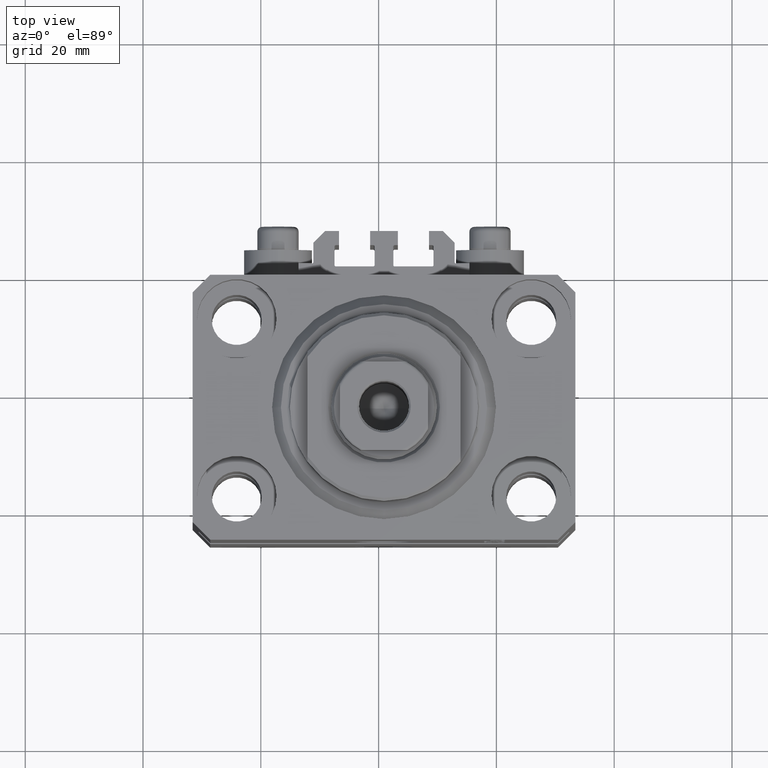
[diagram: clean part render]
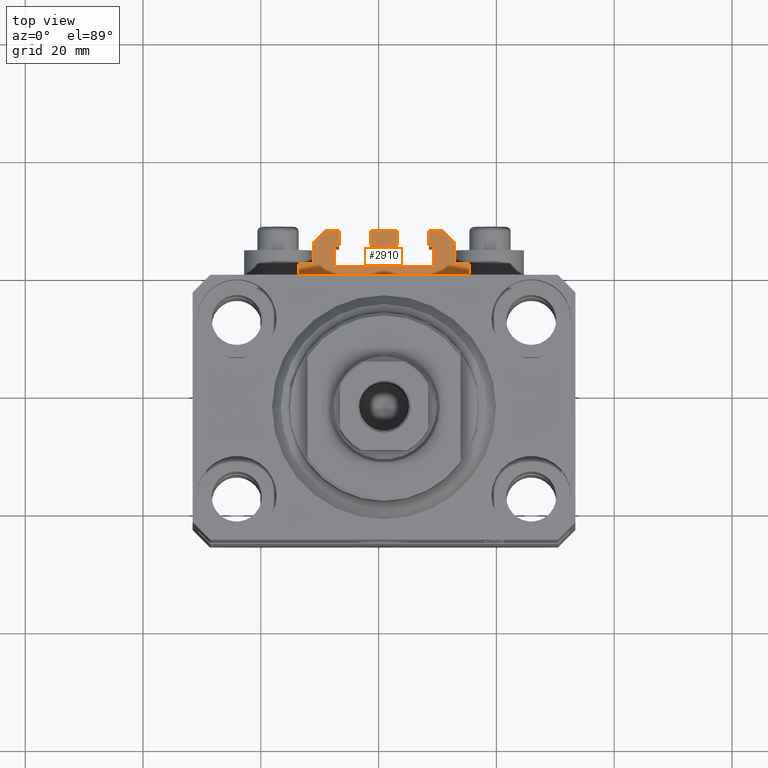
[diagram: same view with one face highlighted and labeled with its STEP entity id]
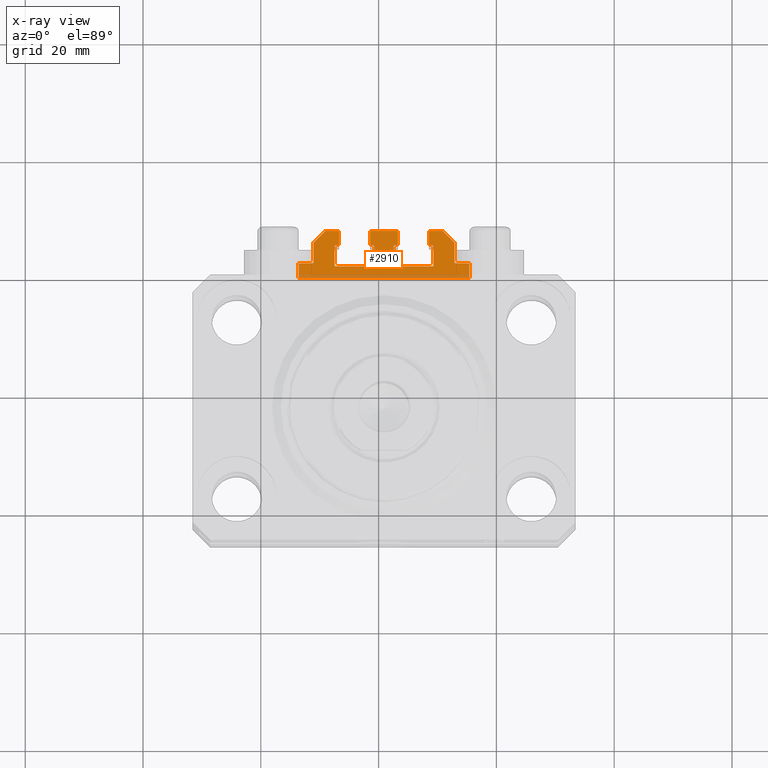
[diagram: x-ray of the same camera — body ghosted, the highlighted face saturated]
A machine part, top view. The second image highlights one B-rep face of the part: STEP entity #2910.
The next image is the same camera in x-ray: the body ghosted, the highlighted face saturated — about 14% of this face is hidden behind the body in this view.
In plain terms, the highlighted planar face has unit normal (0, 0, 1).
Its self-contained STEP definition (entity closure, byte-faithful):
#70 = CIRCLE ( 'NONE', #3872, 0.1999999999999994282 ) ;
#74 = DIRECTION ( 'NONE',  ( 1.000000000000000000, 0.000000000000000000, 0.000000000000000000 ) ) ;
#133 = VECTOR ( 'NONE', #39458, 999.9999999999998863 ) ;
#288 = CARTESIAN_POINT ( 'NONE',  ( -8.199999999999997513, 28.09999999999948628, -33.00000000000000000 ) ) ;
#353 = VERTEX_POINT ( 'NONE', #29320 ) ;
#432 = DIRECTION ( 'NONE',  ( 1.000000000000000000, 0.000000000000000000, 0.000000000000000000 ) ) ;
#461 = DIRECTION ( 'NONE',  ( 0.000000000000000000, 0.000000000000000000, 1.000000000000000000 ) ) ;
#482 = EDGE_CURVE ( 'NONE', #37467, #11060, #42798, .T. ) ;
#587 = VECTOR ( 'NONE', #5708, 1000.000000000000000 ) ;
#820 = EDGE_CURVE ( 'NONE', #39257, #23301, #4828, .T. ) ;
#1068 = VERTEX_POINT ( 'NONE', #9541 ) ;
#1146 = EDGE_CURVE ( 'NONE', #19256, #21785, #41997, .T. ) ;
#1415 = ORIENTED_EDGE ( 'NONE', *, *, #41914, .F. ) ;
#1475 = CARTESIAN_POINT ( 'NONE',  ( 1.800000000000000933, 24.69999999999949480, -33.00000000000000000 ) ) ;
#1570 = DIRECTION ( 'NONE',  ( 1.000000000000000000, 6.308085367188338373E-15, 0.000000000000000000 ) ) ;
#2060 = LINE ( 'NONE', #16634, #40937 ) ;
#2106 = ORIENTED_EDGE ( 'NONE', *, *, #22771, .T. ) ;
#2173 = VERTEX_POINT ( 'NONE', #28388 ) ;
#2184 = EDGE_CURVE ( 'NONE', #45659, #7044, #32213, .T. ) ;
#2283 = CARTESIAN_POINT ( 'NONE',  ( 7.649999999999995914, 28.09999999999950404, -33.00000000000000000 ) ) ;
#2351 = EDGE_CURVE ( 'NONE', #15916, #7044, #33103, .T. ) ;
#2629 = ORIENTED_EDGE ( 'NONE', *, *, #33841, .T. ) ;
#2873 = ORIENTED_EDGE ( 'NONE', *, *, #35543, .T. ) ;
#2910 = ADVANCED_FACE ( 'NONE', ( #32052 ), #31573, .T. ) ;
#3166 = DIRECTION ( 'NONE',  ( 1.000000000000000000, -6.308085367188365195E-15, 0.000000000000000000 ) ) ;
#3250 = VECTOR ( 'NONE', #32615, 1000.000000000000000 ) ;
#3369 = CARTESIAN_POINT ( 'NONE',  ( 12.20000000000000284, 25.19999999999950546, -33.00000000000000000 ) ) ;
#3464 = LINE ( 'NONE', #32605, #45096 ) ;
#3489 = DIRECTION ( 'NONE',  ( 0.000000000000000000, 0.000000000000000000, 1.000000000000000000 ) ) ;
#3872 = AXIS2_PLACEMENT_3D ( 'NONE', #45429, #23717, #20134 ) ;
#3892 = CARTESIAN_POINT ( 'NONE',  ( 9.999999999999994671, 30.49999999999949551, -33.00000000000000000 ) ) ;
#3986 = CARTESIAN_POINT ( 'NONE',  ( -8.199999999999999289, 24.49999999999949551, -33.00000000000000000 ) ) ;
#4112 = CARTESIAN_POINT ( 'NONE',  ( -1.600000000000000533, 27.89999999999950120, -33.00000000000000000 ) ) ;
#4229 = CARTESIAN_POINT ( 'NONE',  ( -8.399999999999998579, 24.69999999999949480, -33.00000000000000000 ) ) ;
#4252 = CARTESIAN_POINT ( 'NONE',  ( -8.399999999999996803, 27.89999999999948699, -33.00000000000000000 ) ) ;
#4334 = ORIENTED_EDGE ( 'NONE', *, *, #31983, .F. ) ;
#4387 = EDGE_CURVE ( 'NONE', #37031, #16776, #43508, .T. ) ;
#4619 = VERTEX_POINT ( 'NONE', #20828 ) ;
#4671 = CARTESIAN_POINT ( 'NONE',  ( 14.49999999999999645, 22.49999999999949907, -33.00000000000000000 ) ) ;
#4828 = LINE ( 'NONE', #45166, #19334 ) ;
#5072 = ORIENTED_EDGE ( 'NONE', *, *, #2351, .F. ) ;
#5195 = LINE ( 'NONE', #41940, #24003 ) ;
#5708 = DIRECTION ( 'NONE',  ( 0.000000000000000000, -1.000000000000000000, 0.000000000000000000 ) ) ;
#5793 = DIRECTION ( 'NONE',  ( -1.000000000000000000, 1.508455196501571429E-15, 0.000000000000000000 ) ) ;
#5803 = VECTOR ( 'NONE', #34979, 1000.000000000000000 ) ;
#5975 = VERTEX_POINT ( 'NONE', #17657 ) ;
#6293 = ORIENTED_EDGE ( 'NONE', *, *, #13293, .T. ) ;
#6461 = EDGE_CURVE ( 'NONE', #21914, #1068, #30984, .T. ) ;
#6846 = DIRECTION ( 'NONE',  ( 1.000000000000000000, 0.000000000000000000, 0.000000000000000000 ) ) ;
#6855 = CARTESIAN_POINT ( 'NONE',  ( 12.20000000000000284, 24.99999999999950617, -33.00000000000000000 ) ) ;
#7044 = VERTEX_POINT ( 'NONE', #6855 ) ;
#7217 = LINE ( 'NONE', #4112, #10998 ) ;
#7282 = CARTESIAN_POINT ( 'NONE',  ( 8.400000000000000355, 27.89999999999950475, -33.00000000000000000 ) ) ;
#7343 = CARTESIAN_POINT ( 'NONE',  ( 12.00000000000000178, 28.49999999999950973, -33.00000000000000000 ) ) ;
#7555 = EDGE_CURVE ( 'NONE', #11060, #42179, #16574, .T. ) ;
#7718 = CARTESIAN_POINT ( 'NONE',  ( -8.199999999999999289, 24.69999999999949480, -33.00000000000000000 ) ) ;
#7757 = VERTEX_POINT ( 'NONE', #44910 ) ;
#7859 = ORIENTED_EDGE ( 'NONE', *, *, #30741, .T. ) ;
#7951 = DIRECTION ( 'NONE',  ( 0.000000000000000000, 0.000000000000000000, 1.000000000000000000 ) ) ;
#8263 = ORIENTED_EDGE ( 'NONE', *, *, #35961, .T. ) ;
#8524 = DIRECTION ( 'NONE',  ( 0.000000000000000000, -1.000000000000000000, 0.000000000000000000 ) ) ;
#8614 = DIRECTION ( 'NONE',  ( 1.000000000000000000, 0.000000000000000000, 0.000000000000000000 ) ) ;
#8640 = DIRECTION ( 'NONE',  ( 0.000000000000000000, 1.000000000000000000, 0.000000000000000000 ) ) ;
#8770 = VECTOR ( 'NONE', #19165, 1000.000000000000000 ) ;
#8876 = VECTOR ( 'NONE', #9391, 1000.000000000000000 ) ;
#8999 = EDGE_CURVE ( 'NONE', #26665, #36611, #7217, .T. ) ;
#9252 = DIRECTION ( 'NONE',  ( 0.000000000000000000, 0.000000000000000000, 1.000000000000000000 ) ) ;
#9391 = DIRECTION ( 'NONE',  ( 1.000000000000000000, 0.000000000000000000, 0.000000000000000000 ) ) ;
#9524 = CARTESIAN_POINT ( 'NONE',  ( 2.349999999999999645, 28.09999999999950049, -33.00000000000000000 ) ) ;
#9541 = CARTESIAN_POINT ( 'NONE',  ( -12.00000000000000000, 25.19999999999949125, -33.00000000000000000 ) ) ;
#9781 = AXIS2_PLACEMENT_3D ( 'NONE', #1475, #41311, #8614 ) ;
#10211 = DIRECTION ( 'NONE',  ( 0.000000000000000000, 0.000000000000000000, 1.000000000000000000 ) ) ;
#10590 = CARTESIAN_POINT ( 'NONE',  ( -8.400000000000000355, 24.69999999999949480, -33.00000000000000000 ) ) ;
#10870 = DIRECTION ( 'NONE',  ( 0.000000000000000000, 1.000000000000000000, 0.000000000000000000 ) ) ;
#10998 = VECTOR ( 'NONE', #40620, 1000.000000000000000 ) ;
#11001 = VERTEX_POINT ( 'NONE', #3986 ) ;
#11060 = VERTEX_POINT ( 'NONE', #19264 ) ;
#11087 = CARTESIAN_POINT ( 'NONE',  ( -2.350000000000003197, 30.49999999999949907, -33.00000000000000000 ) ) ;
#11341 = VECTOR ( 'NONE', #14266, 1000.000000000000000 ) ;
#11510 = DIRECTION ( 'NONE',  ( 0.000000000000000000, 0.000000000000000000, 1.000000000000000000 ) ) ;
#11677 = ORIENTED_EDGE ( 'NONE', *, *, #41366, .T. ) ;
#12057 = CARTESIAN_POINT ( 'NONE',  ( 1.599999999999999645, 24.69999999999949480, -33.00000000000000000 ) ) ;
#12522 = AXIS2_PLACEMENT_3D ( 'NONE', #27632, #9252, #41706 ) ;
#13293 = EDGE_CURVE ( 'NONE', #24456, #2173, #5195, .T. ) ;
#13601 = ORIENTED_EDGE ( 'NONE', *, *, #34123, .T. ) ;
#13629 = VECTOR ( 'NONE', #43234, 1000.000000000000000 ) ;
#13918 = LINE ( 'NONE', #24899, #133 ) ;
#14094 = CARTESIAN_POINT ( 'NONE',  ( -14.50000000000000000, 24.99999999999949196, -33.00000000000000000 ) ) ;
#14266 = DIRECTION ( 'NONE',  ( -1.000000000000000000, 0.000000000000000000, 0.000000000000000000 ) ) ;
#14872 = ORIENTED_EDGE ( 'NONE', *, *, #45757, .T. ) ;
#15666 = DIRECTION ( 'NONE',  ( 6.938893903907212600E-16, 1.000000000000000000, 0.000000000000000000 ) ) ;
#15916 = VERTEX_POINT ( 'NONE', #21608 ) ;
#16574 = LINE ( 'NONE', #42078, #8876 ) ;
#16634 = CARTESIAN_POINT ( 'NONE',  ( 8.400000000000000355, 27.89999999999950475, -33.00000000000000000 ) ) ;
#16651 = EDGE_CURVE ( 'NONE', #42179, #45659, #45721, .T. ) ;
#16776 = VERTEX_POINT ( 'NONE', #4252 ) ;
#16844 = CARTESIAN_POINT ( 'NONE',  ( 2.349999999999999645, 30.49999999999949907, -33.00000000000000000 ) ) ;
#17090 = LINE ( 'NONE', #31642, #32553 ) ;
#17189 = CIRCLE ( 'NONE', #43841, 0.2000000000000005107 ) ;
#17219 = CARTESIAN_POINT ( 'NONE',  ( 8.200000000000001066, 24.69999999999949125, -33.00000000000000000 ) ) ;
#17307 = CARTESIAN_POINT ( 'NONE',  ( 12.00000000000000178, 25.19999999999951257, -33.00000000000000000 ) ) ;
#17431 = EDGE_CURVE ( 'NONE', #37031, #11001, #27946, .T. ) ;
#17657 = CARTESIAN_POINT ( 'NONE',  ( -7.650000000000000355, 28.09999999999948628, -33.00000000000000000 ) ) ;
#17727 = LINE ( 'NONE', #288, #13629 ) ;
#18510 = CARTESIAN_POINT ( 'NONE',  ( -7.650000000000000355, 28.09999999999948628, -33.00000000000000000 ) ) ;
#18745 = VECTOR ( 'NONE', #5793, 1000.000000000000000 ) ;
#18750 = LINE ( 'NONE', #18510, #27876 ) ;
#19165 = DIRECTION ( 'NONE',  ( 1.084202172485506406E-15, 1.000000000000000000, 0.000000000000000000 ) ) ;
#19256 = VERTEX_POINT ( 'NONE', #9524 ) ;
#19264 = CARTESIAN_POINT ( 'NONE',  ( -14.50000000000000000, 22.49999999999949907, -33.00000000000000000 ) ) ;
#19292 = ORIENTED_EDGE ( 'NONE', *, *, #28201, .F. ) ;
#19334 = VECTOR ( 'NONE', #8640, 1000.000000000000000 ) ;
#19808 = ORIENTED_EDGE ( 'NONE', *, *, #23401, .T. ) ;
#19892 = LINE ( 'NONE', #24175, #18745 ) ;
#19895 = VERTEX_POINT ( 'NONE', #25087 ) ;
#19986 = EDGE_LOOP ( 'NONE', ( #23413, #44926, #25764, #37624, #5072, #20957, #13601, #11677, #6293, #7859, #41347, #30151, #41302, #30855, #37823, #25946, #41139, #2873, #20357, #19292, #40312, #2106, #1415, #45130, #4334, #19808, #29629, #38454, #45181, #14872, #28187, #8263, #2629, #31689, #39038, #35576 ) ) ;
#19995 = DIRECTION ( 'NONE',  ( 3.614007241618365534E-16, -1.000000000000000000, 0.000000000000000000 ) ) ;
#20134 = DIRECTION ( 'NONE',  ( 1.000000000000000000, 0.000000000000000000, 0.000000000000000000 ) ) ;
#20357 = ORIENTED_EDGE ( 'NONE', *, *, #1146, .T. ) ;
#20471 = CIRCLE ( 'NONE', #41003, 0.1999999999999987899 ) ;
#20828 = CARTESIAN_POINT ( 'NONE',  ( 8.200000000000001066, 24.49999999999949196, -33.00000000000000000 ) ) ;
#20907 = DIRECTION ( 'NONE',  ( -1.000000000000000000, -1.476360405086644852E-15, 0.000000000000000000 ) ) ;
#20923 = VECTOR ( 'NONE', #46530, 1000.000000000000000 ) ;
#20957 = ORIENTED_EDGE ( 'NONE', *, *, #39298, .T. ) ;
#21206 = EDGE_CURVE ( 'NONE', #33595, #36137, #45583, .T. ) ;
#21231 = CARTESIAN_POINT ( 'NONE',  ( -7.650000000000000355, 30.49999999999948486, -33.00000000000000000 ) ) ;
#21372 = DIRECTION ( 'NONE',  ( 0.000000000000000000, 0.000000000000000000, 1.000000000000000000 ) ) ;
#21383 = VERTEX_POINT ( 'NONE', #33377 ) ;
#21449 = LINE ( 'NONE', #39344, #11341 ) ;
#21513 = CARTESIAN_POINT ( 'NONE',  ( -1.800000000000000933, 24.49999999999949551, -33.00000000000000000 ) ) ;
#21608 = CARTESIAN_POINT ( 'NONE',  ( 12.00000000000000355, 25.19999999999951257, -33.00000000000000000 ) ) ;
#21664 = DIRECTION ( 'NONE',  ( 1.000000000000000000, 0.000000000000000000, 0.000000000000000000 ) ) ;
#21785 = VERTEX_POINT ( 'NONE', #16844 ) ;
#21914 = VERTEX_POINT ( 'NONE', #28731 ) ;
#22056 = EDGE_CURVE ( 'NONE', #4619, #31153, #20471, .T. ) ;
#22085 = LINE ( 'NONE', #43779, #27574 ) ;
#22150 = DIRECTION ( 'NONE',  ( -0.7071067811865507924, 0.7071067811865441310, 0.000000000000000000 ) ) ;
#22184 = CARTESIAN_POINT ( 'NONE',  ( -1.800000000000000933, 27.89999999999950120, -33.00000000000000000 ) ) ;
#22208 = EDGE_CURVE ( 'NONE', #39257, #7757, #30374, .T. ) ;
#22247 = VECTOR ( 'NONE', #22150, 1000.000000000000000 ) ;
#22771 = EDGE_CURVE ( 'NONE', #36137, #353, #40147, .T. ) ;
#22914 = CARTESIAN_POINT ( 'NONE',  ( 8.200000000000001066, 28.09999999999950759, -33.00000000000000000 ) ) ;
#23301 = VERTEX_POINT ( 'NONE', #38640 ) ;
#23397 = DIRECTION ( 'NONE',  ( 0.000000000000000000, 1.000000000000000000, 0.000000000000000000 ) ) ;
#23401 = EDGE_CURVE ( 'NONE', #37404, #11001, #21449, .T. ) ;
#23413 = ORIENTED_EDGE ( 'NONE', *, *, #482, .T. ) ;
#23717 = DIRECTION ( 'NONE',  ( 0.000000000000000000, 0.000000000000000000, 1.000000000000000000 ) ) ;
#24003 = VECTOR ( 'NONE', #19995, 1000.000000000000000 ) ;
#24175 = CARTESIAN_POINT ( 'NONE',  ( -12.20000000000000107, 24.99999999999948841, -33.00000000000000000 ) ) ;
#24456 = VERTEX_POINT ( 'NONE', #37899 ) ;
#24756 = CARTESIAN_POINT ( 'NONE',  ( -8.199999999999997513, 27.89999999999948699, -33.00000000000000000 ) ) ;
#24773 = CARTESIAN_POINT ( 'NONE',  ( 1.800000000000000933, 27.89999999999950120, -33.00000000000000000 ) ) ;
#24899 = CARTESIAN_POINT ( 'NONE',  ( -10.00000000000000000, 30.49999999999948841, -33.00000000000000000 ) ) ;
#25087 = CARTESIAN_POINT ( 'NONE',  ( -8.199999999999997513, 28.09999999999948628, -33.00000000000000000 ) ) ;
#25328 = VECTOR ( 'NONE', #40404, 1000.000000000000000 ) ;
#25731 = LINE ( 'NONE', #43611, #32723 ) ;
#25764 = ORIENTED_EDGE ( 'NONE', *, *, #16651, .T. ) ;
#25946 = ORIENTED_EDGE ( 'NONE', *, *, #820, .T. ) ;
#26665 = VERTEX_POINT ( 'NONE', #44322 ) ;
#27574 = VECTOR ( 'NONE', #36639, 1000.000000000000000 ) ;
#27632 = CARTESIAN_POINT ( 'NONE',  ( 12.20000000000000284, 25.19999999999950546, -33.00000000000000000 ) ) ;
#27876 = VECTOR ( 'NONE', #10870, 1000.000000000000000 ) ;
#27946 = CIRCLE ( 'NONE', #32515, 0.1999999999999987899 ) ;
#28042 = CIRCLE ( 'NONE', #42503, 0.1999999999999981515 ) ;
#28187 = ORIENTED_EDGE ( 'NONE', *, *, #38020, .T. ) ;
#28201 = EDGE_CURVE ( 'NONE', #33595, #21785, #25731, .T. ) ;
#28216 = VERTEX_POINT ( 'NONE', #7343 ) ;
#28388 = CARTESIAN_POINT ( 'NONE',  ( 7.649999999999995914, 28.09999999999950404, -33.00000000000000000 ) ) ;
#28731 = CARTESIAN_POINT ( 'NONE',  ( -12.20000000000000107, 24.99999999999948841, -33.00000000000000000 ) ) ;
#29036 = CARTESIAN_POINT ( 'NONE',  ( 14.49999999999999645, 22.49999999999949907, -33.00000000000000000 ) ) ;
#29252 = VECTOR ( 'NONE', #23397, 1000.000000000000000 ) ;
#29320 = CARTESIAN_POINT ( 'NONE',  ( -1.800000000000000933, 28.09999999999949694, -33.00000000000000000 ) ) ;
#29629 = ORIENTED_EDGE ( 'NONE', *, *, #17431, .F. ) ;
#29663 = CARTESIAN_POINT ( 'NONE',  ( 8.200000000000001066, 27.89999999999950475, -33.00000000000000000 ) ) ;
#30151 = ORIENTED_EDGE ( 'NONE', *, *, #42353, .T. ) ;
#30374 = CIRCLE ( 'NONE', #9781, 0.2000000000000016209 ) ;
#30741 = EDGE_CURVE ( 'NONE', #2173, #35395, #34279, .T. ) ;
#30855 = ORIENTED_EDGE ( 'NONE', *, *, #34508, .T. ) ;
#30984 = CIRCLE ( 'NONE', #35532, 0.2000000000000005107 ) ;
#31153 = VERTEX_POINT ( 'NONE', #46056 ) ;
#31319 = DIRECTION ( 'NONE',  ( 1.000000000000000000, 0.000000000000000000, 0.000000000000000000 ) ) ;
#31487 = EDGE_CURVE ( 'NONE', #19895, #16776, #35851, .T. ) ;
#31544 = VECTOR ( 'NONE', #8524, 1000.000000000000000 ) ;
#31573 = PLANE ( 'NONE',  #33142 ) ;
#31642 = CARTESIAN_POINT ( 'NONE',  ( 9.999999999999994671, 30.49999999999949551, -33.00000000000000000 ) ) ;
#31689 = ORIENTED_EDGE ( 'NONE', *, *, #33654, .T. ) ;
#31983 = EDGE_CURVE ( 'NONE', #37404, #36611, #70, .T. ) ;
#32052 = FACE_OUTER_BOUND ( 'NONE', #19986, .T. ) ;
#32213 = LINE ( 'NONE', #39132, #20923 ) ;
#32377 = CARTESIAN_POINT ( 'NONE',  ( 1.800000000000000933, 28.09999999999949694, -33.00000000000000000 ) ) ;
#32515 = AXIS2_PLACEMENT_3D ( 'NONE', #7718, #7951, #36844 ) ;
#32553 = VECTOR ( 'NONE', #20907, 1000.000000000000000 ) ;
#32605 = CARTESIAN_POINT ( 'NONE',  ( 8.200000000000001066, 24.49999999999949196, -33.00000000000000000 ) ) ;
#32615 = DIRECTION ( 'NONE',  ( 1.000000000000000000, 6.308085367188405427E-15, 0.000000000000000000 ) ) ;
#32723 = VECTOR ( 'NONE', #432, 1000.000000000000000 ) ;
#33103 = CIRCLE ( 'NONE', #12522, 0.1999999999999987899 ) ;
#33142 = AXIS2_PLACEMENT_3D ( 'NONE', #3369, #38735, #42987 ) ;
#33241 = VECTOR ( 'NONE', #15666, 1000.000000000000000 ) ;
#33377 = CARTESIAN_POINT ( 'NONE',  ( -12.00000000000000000, 28.49999999999948841, -33.00000000000000000 ) ) ;
#33569 = AXIS2_PLACEMENT_3D ( 'NONE', #24756, #3489, #6846 ) ;
#33595 = VERTEX_POINT ( 'NONE', #11087 ) ;
#33654 = EDGE_CURVE ( 'NONE', #21383, #1068, #22085, .T. ) ;
#33841 = EDGE_CURVE ( 'NONE', #45216, #21383, #13918, .T. ) ;
#34088 = CIRCLE ( 'NONE', #37910, 0.1999999999999979294 ) ;
#34123 = EDGE_CURVE ( 'NONE', #28216, #35814, #36000, .T. ) ;
#34279 = LINE ( 'NONE', #2283, #45764 ) ;
#34508 = EDGE_CURVE ( 'NONE', #4619, #7757, #3464, .T. ) ;
#34929 = CARTESIAN_POINT ( 'NONE',  ( 14.49999999999999822, 24.99999999999950617, -33.00000000000000000 ) ) ;
#34979 = DIRECTION ( 'NONE',  ( 0.000000000000000000, 1.000000000000000000, 0.000000000000000000 ) ) ;
#35395 = VERTEX_POINT ( 'NONE', #22914 ) ;
#35532 = AXIS2_PLACEMENT_3D ( 'NONE', #46655, #21372, #40884 ) ;
#35543 = EDGE_CURVE ( 'NONE', #37766, #19256, #46698, .T. ) ;
#35576 = ORIENTED_EDGE ( 'NONE', *, *, #39858, .T. ) ;
#35814 = VERTEX_POINT ( 'NONE', #3892 ) ;
#35851 = CIRCLE ( 'NONE', #33569, 0.1999999999999987899 ) ;
#35961 = EDGE_CURVE ( 'NONE', #37687, #45216, #37318, .T. ) ;
#36000 = LINE ( 'NONE', #43607, #22247 ) ;
#36137 = VERTEX_POINT ( 'NONE', #36543 ) ;
#36267 = DIRECTION ( 'NONE',  ( 1.000000000000000000, 0.000000000000000000, 0.000000000000000000 ) ) ;
#36543 = CARTESIAN_POINT ( 'NONE',  ( -2.350000000000003197, 28.09999999999950049, -33.00000000000000000 ) ) ;
#36607 = EDGE_CURVE ( 'NONE', #37332, #35395, #17189, .T. ) ;
#36611 = VERTEX_POINT ( 'NONE', #40152 ) ;
#36639 = DIRECTION ( 'NONE',  ( 0.000000000000000000, -1.000000000000000000, 0.000000000000000000 ) ) ;
#36844 = DIRECTION ( 'NONE',  ( 1.000000000000000000, 0.000000000000000000, 0.000000000000000000 ) ) ;
#37031 = VERTEX_POINT ( 'NONE', #4229 ) ;
#37318 = LINE ( 'NONE', #40871, #25328 ) ;
#37332 = VERTEX_POINT ( 'NONE', #7282 ) ;
#37404 = VERTEX_POINT ( 'NONE', #21513 ) ;
#37467 = VERTEX_POINT ( 'NONE', #14094 ) ;
#37624 = ORIENTED_EDGE ( 'NONE', *, *, #2184, .T. ) ;
#37687 = VERTEX_POINT ( 'NONE', #21231 ) ;
#37766 = VERTEX_POINT ( 'NONE', #40975 ) ;
#37823 = ORIENTED_EDGE ( 'NONE', *, *, #22208, .F. ) ;
#37899 = CARTESIAN_POINT ( 'NONE',  ( 7.649999999999995026, 30.49999999999949196, -33.00000000000000000 ) ) ;
#37910 = AXIS2_PLACEMENT_3D ( 'NONE', #22184, #461, #36267 ) ;
#38020 = EDGE_CURVE ( 'NONE', #5975, #37687, #18750, .T. ) ;
#38044 = VECTOR ( 'NONE', #3166, 1000.000000000000000 ) ;
#38423 = CARTESIAN_POINT ( 'NONE',  ( -2.350000000000003197, 30.49999999999949907, -33.00000000000000000 ) ) ;
#38454 = ORIENTED_EDGE ( 'NONE', *, *, #4387, .T. ) ;
#38558 = LINE ( 'NONE', #17307, #5803 ) ;
#38640 = CARTESIAN_POINT ( 'NONE',  ( 1.600000000000000533, 27.89999999999950120, -33.00000000000000000 ) ) ;
#38735 = DIRECTION ( 'NONE',  ( 0.000000000000000000, 0.000000000000000000, 1.000000000000000000 ) ) ;
#39001 = CARTESIAN_POINT ( 'NONE',  ( -14.50000000000000000, 24.99999999999949196, -33.00000000000000000 ) ) ;
#39038 = ORIENTED_EDGE ( 'NONE', *, *, #6461, .F. ) ;
#39132 = CARTESIAN_POINT ( 'NONE',  ( 14.49999999999999822, 24.99999999999950617, -33.00000000000000000 ) ) ;
#39257 = VERTEX_POINT ( 'NONE', #12057 ) ;
#39298 = EDGE_CURVE ( 'NONE', #15916, #28216, #38558, .T. ) ;
#39344 = CARTESIAN_POINT ( 'NONE',  ( -1.800000000000000933, 24.49999999999949551, -33.00000000000000000 ) ) ;
#39458 = DIRECTION ( 'NONE',  ( -0.7071067811865472397, -0.7071067811865479058, 0.000000000000000000 ) ) ;
#39858 = EDGE_CURVE ( 'NONE', #21914, #37467, #19892, .T. ) ;
#40147 = LINE ( 'NONE', #43489, #38044 ) ;
#40152 = CARTESIAN_POINT ( 'NONE',  ( -1.600000000000000755, 24.69999999999949480, -33.00000000000000000 ) ) ;
#40312 = ORIENTED_EDGE ( 'NONE', *, *, #21206, .T. ) ;
#40404 = DIRECTION ( 'NONE',  ( -1.000000000000000000, 1.476360405086644852E-15, 0.000000000000000000 ) ) ;
#40620 = DIRECTION ( 'NONE',  ( -6.776263578034385456E-17, -1.000000000000000000, 0.000000000000000000 ) ) ;
#40871 = CARTESIAN_POINT ( 'NONE',  ( -7.650000000000000355, 30.49999999999948486, -33.00000000000000000 ) ) ;
#40884 = DIRECTION ( 'NONE',  ( 1.000000000000000000, 0.000000000000000000, 0.000000000000000000 ) ) ;
#40937 = VECTOR ( 'NONE', #46663, 1000.000000000000000 ) ;
#40975 = CARTESIAN_POINT ( 'NONE',  ( 1.800000000000000933, 28.09999999999950049, -33.00000000000000000 ) ) ;
#41003 = AXIS2_PLACEMENT_3D ( 'NONE', #17219, #46326, #31319 ) ;
#41139 = ORIENTED_EDGE ( 'NONE', *, *, #46308, .F. ) ;
#41302 = ORIENTED_EDGE ( 'NONE', *, *, #22056, .F. ) ;
#41311 = DIRECTION ( 'NONE',  ( 0.000000000000000000, 0.000000000000000000, 1.000000000000000000 ) ) ;
#41347 = ORIENTED_EDGE ( 'NONE', *, *, #36607, .F. ) ;
#41366 = EDGE_CURVE ( 'NONE', #35814, #24456, #17090, .T. ) ;
#41508 = CARTESIAN_POINT ( 'NONE',  ( 2.349999999999999645, 28.09999999999950049, -33.00000000000000000 ) ) ;
#41706 = DIRECTION ( 'NONE',  ( 1.000000000000000000, 0.000000000000000000, 0.000000000000000000 ) ) ;
#41914 = EDGE_CURVE ( 'NONE', #26665, #353, #34088, .T. ) ;
#41940 = CARTESIAN_POINT ( 'NONE',  ( 7.649999999999995026, 30.49999999999949196, -33.00000000000000000 ) ) ;
#41997 = LINE ( 'NONE', #41508, #29252 ) ;
#42078 = CARTESIAN_POINT ( 'NONE',  ( -14.50000000000000000, 22.49999999999949907, -33.00000000000000000 ) ) ;
#42179 = VERTEX_POINT ( 'NONE', #29036 ) ;
#42353 = EDGE_CURVE ( 'NONE', #37332, #31153, #2060, .T. ) ;
#42503 = AXIS2_PLACEMENT_3D ( 'NONE', #24773, #10211, #21664 ) ;
#42798 = LINE ( 'NONE', #39001, #31544 ) ;
#42987 = DIRECTION ( 'NONE',  ( 1.000000000000000000, 0.000000000000000000, -0.000000000000000000 ) ) ;
#43080 = DIRECTION ( 'NONE',  ( -1.000000000000000000, 0.000000000000000000, 0.000000000000000000 ) ) ;
#43234 = DIRECTION ( 'NONE',  ( 1.000000000000000000, 0.000000000000000000, 0.000000000000000000 ) ) ;
#43489 = CARTESIAN_POINT ( 'NONE',  ( -2.350000000000003197, 28.09999999999950049, -33.00000000000000000 ) ) ;
#43508 = LINE ( 'NONE', #10590, #8770 ) ;
#43607 = CARTESIAN_POINT ( 'NONE',  ( 12.00000000000000178, 28.49999999999950973, -33.00000000000000000 ) ) ;
#43611 = CARTESIAN_POINT ( 'NONE',  ( -2.350000000000003197, 30.49999999999949907, -33.00000000000000000 ) ) ;
#43779 = CARTESIAN_POINT ( 'NONE',  ( -12.00000000000000000, 28.49999999999948841, -33.00000000000000000 ) ) ;
#43841 = AXIS2_PLACEMENT_3D ( 'NONE', #29663, #11510, #74 ) ;
#44322 = CARTESIAN_POINT ( 'NONE',  ( -1.600000000000003197, 27.89999999999950120, -33.00000000000000000 ) ) ;
#44910 = CARTESIAN_POINT ( 'NONE',  ( 1.800000000000000933, 24.49999999999949196, -33.00000000000000000 ) ) ;
#44926 = ORIENTED_EDGE ( 'NONE', *, *, #7555, .T. ) ;
#45096 = VECTOR ( 'NONE', #43080, 1000.000000000000000 ) ;
#45130 = ORIENTED_EDGE ( 'NONE', *, *, #8999, .T. ) ;
#45166 = CARTESIAN_POINT ( 'NONE',  ( 1.600000000000000533, 24.69999999999949480, -33.00000000000000000 ) ) ;
#45181 = ORIENTED_EDGE ( 'NONE', *, *, #31487, .F. ) ;
#45216 = VERTEX_POINT ( 'NONE', #46947 ) ;
#45429 = CARTESIAN_POINT ( 'NONE',  ( -1.800000000000000933, 24.69999999999949480, -33.00000000000000000 ) ) ;
#45583 = LINE ( 'NONE', #38423, #587 ) ;
#45659 = VERTEX_POINT ( 'NONE', #34929 ) ;
#45721 = LINE ( 'NONE', #4671, #33241 ) ;
#45757 = EDGE_CURVE ( 'NONE', #19895, #5975, #17727, .T. ) ;
#45764 = VECTOR ( 'NONE', #1570, 1000.000000000000000 ) ;
#46056 = CARTESIAN_POINT ( 'NONE',  ( 8.400000000000000355, 24.69999999999949125, -33.00000000000000000 ) ) ;
#46308 = EDGE_CURVE ( 'NONE', #37766, #23301, #28042, .T. ) ;
#46326 = DIRECTION ( 'NONE',  ( 0.000000000000000000, 0.000000000000000000, 1.000000000000000000 ) ) ;
#46530 = DIRECTION ( 'NONE',  ( -1.000000000000000000, 0.000000000000000000, 0.000000000000000000 ) ) ;
#46655 = CARTESIAN_POINT ( 'NONE',  ( -12.20000000000000107, 25.19999999999949125, -33.00000000000000000 ) ) ;
#46663 = DIRECTION ( 'NONE',  ( -5.421010862427496532E-16, -1.000000000000000000, 0.000000000000000000 ) ) ;
#46698 = LINE ( 'NONE', #32377, #3250 ) ;
#46947 = CARTESIAN_POINT ( 'NONE',  ( -10.00000000000000000, 30.49999999999948841, -33.00000000000000000 ) ) ;